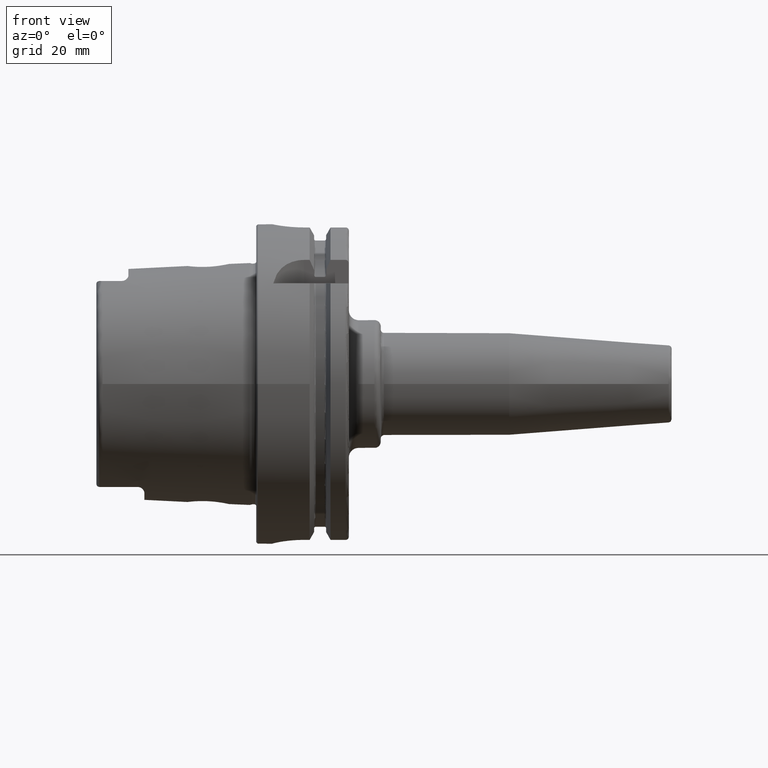
[diagram: clean part render]
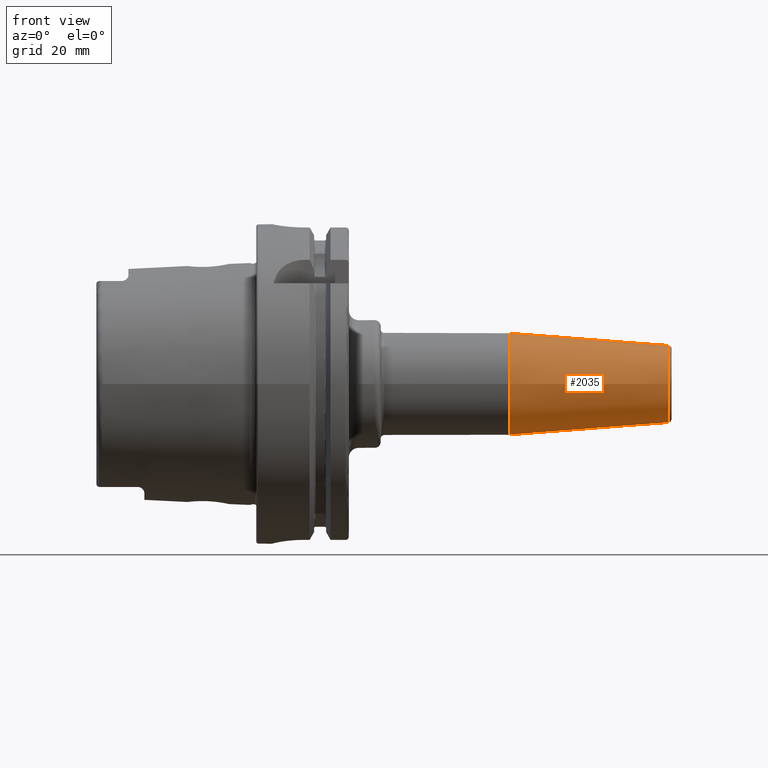
[diagram: same view with one face highlighted and labeled with its STEP entity id]
A machine part, front view. The second image highlights one B-rep face of the part: STEP entity #2035.
In plain terms, the highlighted conical surface has half-angle 4.5 deg.
Its self-contained STEP definition (entity closure, byte-faithful):
#221=FACE_OUTER_BOUND('',#345,.T.);
#345=EDGE_LOOP('',(#1393,#1394,#1395,#1396,#1397));
#478=LINE('',#3133,#586);
#586=VECTOR('',#2495,14.);
#696=CIRCLE('',#2189,16.);
#699=CIRCLE('',#2193,12.0725268420749);
#700=CIRCLE('',#2194,12.0725268420749);
#837=VERTEX_POINT('',#3121);
#839=VERTEX_POINT('',#3127);
#840=VERTEX_POINT('',#3129);
#1051=EDGE_CURVE('',#837,#837,#696,.T.);
#1055=EDGE_CURVE('',#839,#840,#699,.T.);
#1056=EDGE_CURVE('',#840,#839,#700,.T.);
#1057=EDGE_CURVE('',#840,#837,#478,.T.);
#1393=ORIENTED_EDGE('',*,*,#1056,.F.);
#1394=ORIENTED_EDGE('',*,*,#1057,.T.);
#1395=ORIENTED_EDGE('',*,*,#1051,.T.);
#1396=ORIENTED_EDGE('',*,*,#1057,.F.);
#1397=ORIENTED_EDGE('',*,*,#1055,.F.);
#2012=CONICAL_SURFACE('',#2195,14.,0.0785398163397448);
#2035=ADVANCED_FACE('',(#221),#2012,.T.);
#2189=AXIS2_PLACEMENT_3D('',#3122,#2480,#2481);
#2193=AXIS2_PLACEMENT_3D('',#3130,#2489,#2490);
#2194=AXIS2_PLACEMENT_3D('',#3131,#2491,#2492);
#2195=AXIS2_PLACEMENT_3D('',#3132,#2493,#2494);
#2480=DIRECTION('center_axis',(1.,0.,0.));
#2481=DIRECTION('ref_axis',(0.,0.,-1.));
#2489=DIRECTION('center_axis',(1.,0.,0.));
#2490=DIRECTION('ref_axis',(0.,-1.,3.06161699786838E-17));
#2491=DIRECTION('center_axis',(1.,0.,0.));
#2492=DIRECTION('ref_axis',(0.,-1.,3.06161699786838E-17));
#2493=DIRECTION('center_axis',(-1.,0.,0.));
#2494=DIRECTION('ref_axis',(0.,1.,0.));
#2495=DIRECTION('',(-0.996917333733128,-0.0784590957278449,-9.60846804471011E-18));
#3121=CARTESIAN_POINT('',(79.1751810553013,-16.,-1.95943487863576E-15));
#3122=CARTESIAN_POINT('Origin',(79.1751810553013,0.,0.));
#3127=CARTESIAN_POINT('',(129.078459095728,-1.47845813547676E-15,12.0725268420749));
#3129=CARTESIAN_POINT('',(129.078459095728,-12.0725268420749,-1.47845813547676E-15));
#3130=CARTESIAN_POINT('Origin',(129.078459095728,0.,-1.84807266934594E-15));
#3131=CARTESIAN_POINT('Origin',(129.078459095728,0.,-1.84807266934594E-15));
#3132=CARTESIAN_POINT('Origin',(104.587590527651,0.,0.));
#3133=CARTESIAN_POINT('',(104.587590527651,-14.,-1.71450551880629E-15));